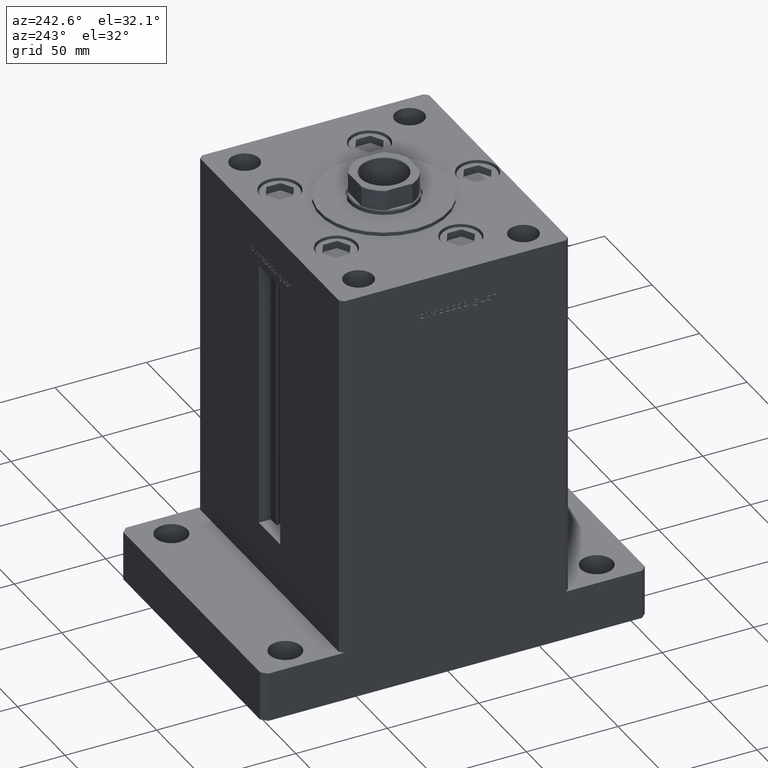
[diagram: clean part render]
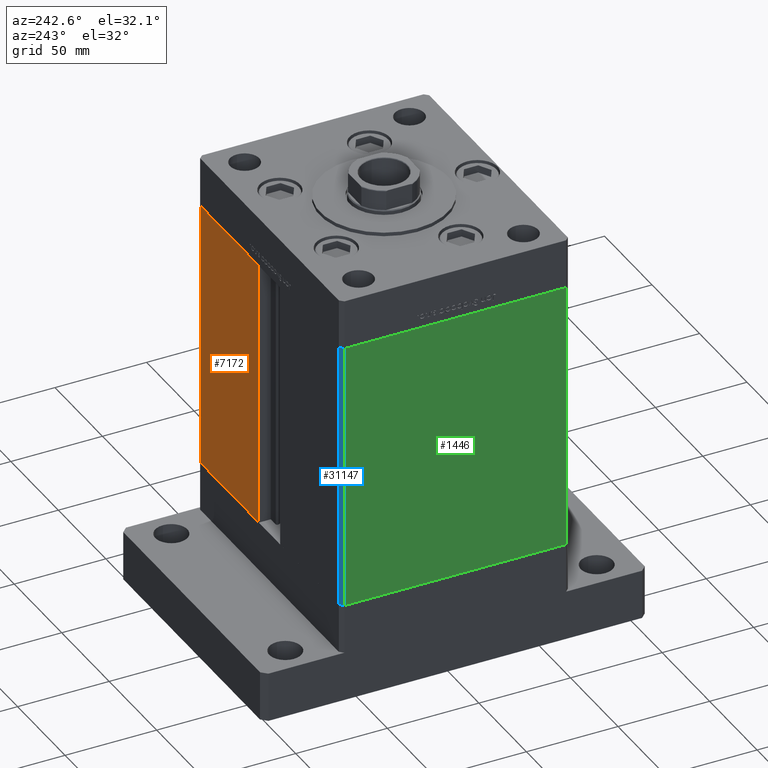
[diagram: same view with three faces highlighted in distinct colors, each labeled with its STEP entity id]
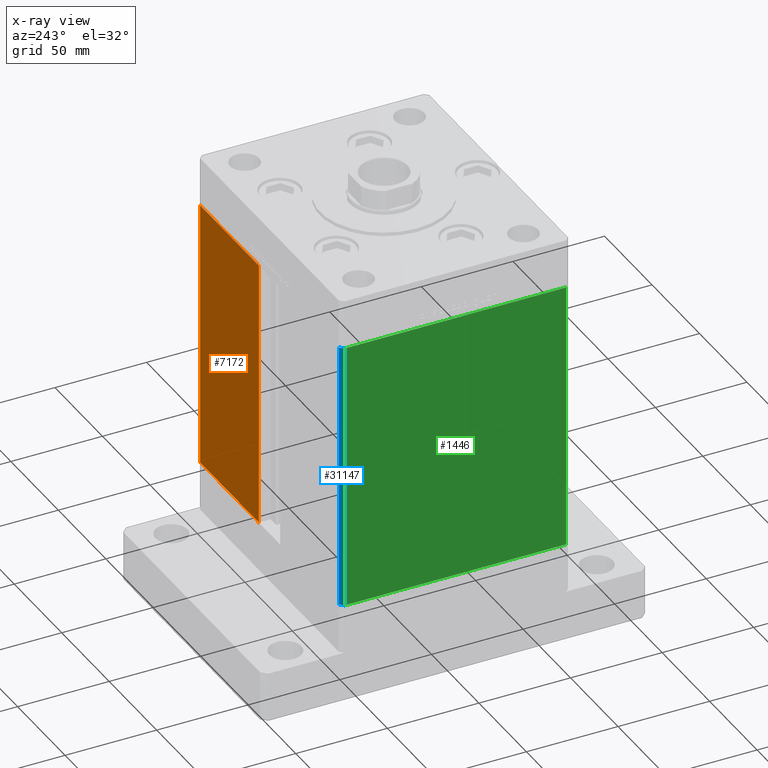
[diagram: x-ray of the same camera — body ghosted, the three highlighted faces saturated]
A machine part, auxiliary view with three faces highlighted in distinct colors.
The next image is the same camera in x-ray (body ghosted, the three faces saturated) — at least one of them is partly hidden behind the body in this view.
Their STEP definitions:

[orange] entity #7172 — the highlighted planar face has unit normal (-0, -1, 0).
#18 = CARTESIAN_POINT ( 'NONE',  ( -11.25000000000000178, 62.49999999999999289, 147.0000000000000000 ) ) ;
#65 = DIRECTION ( 'NONE',  ( 1.000000000000000000, -1.123707514802790025E-16, 0.000000000000000000 ) ) ;
#326 = ORIENTED_EDGE ( 'NONE', *, *, #10324, .T. ) ;
#3640 = VECTOR ( 'NONE', #35101, 1000.000000000000000 ) ;
#7172 = ADVANCED_FACE ( 'NONE', ( #20427 ), #19616, .F. ) ;
#9149 = VECTOR ( 'NONE', #9198, 1000.000000000000000 ) ;
#9198 = DIRECTION ( 'NONE',  ( -0.000000000000000000, -0.000000000000000000, -1.000000000000000000 ) ) ;
#10054 = EDGE_LOOP ( 'NONE', ( #25030, #326, #38115, #32100 ) ) ;
#10324 = EDGE_CURVE ( 'NONE', #29170, #35996, #22620, .T. ) ;
#10507 = DIRECTION ( 'NONE',  ( -1.000000000000000000, 1.123707514802790025E-16, 0.000000000000000000 ) ) ;
#11328 = CARTESIAN_POINT ( 'NONE',  ( 73.00000000000001421, 62.50000000000000000, 0.000000000000000000 ) ) ;
#12677 = VERTEX_POINT ( 'NONE', #11328 ) ;
#13516 = VECTOR ( 'NONE', #40459, 1000.000000000000000 ) ;
#14583 = CARTESIAN_POINT ( 'NONE',  ( -11.25000000000000178, 62.49999999999999289, 0.000000000000000000 ) ) ;
#15650 = AXIS2_PLACEMENT_3D ( 'NONE', #24775, #36710, #65 ) ;
#15813 = EDGE_CURVE ( 'NONE', #12677, #29170, #36024, .T. ) ;
#18499 = VECTOR ( 'NONE', #10507, 1000.000000000000000 ) ;
#19616 = PLANE ( 'NONE',  #15650 ) ;
#20427 = FACE_OUTER_BOUND ( 'NONE', #10054, .T. ) ;
#21832 = CARTESIAN_POINT ( 'NONE',  ( 11.25000000000000178, 62.49999999999999289, 0.000000000000000000 ) ) ;
#22620 = LINE ( 'NONE', #21832, #3640 ) ;
#24775 = CARTESIAN_POINT ( 'NONE',  ( -11.25000000000000178, 62.49999999999999289, 147.0000000000000000 ) ) ;
#25030 = ORIENTED_EDGE ( 'NONE', *, *, #15813, .T. ) ;
#29170 = VERTEX_POINT ( 'NONE', #50791 ) ;
#32100 = ORIENTED_EDGE ( 'NONE', *, *, #46006, .T. ) ;
#32571 = VERTEX_POINT ( 'NONE', #49778 ) ;
#32855 = LINE ( 'NONE', #18, #13516 ) ;
#35101 = DIRECTION ( 'NONE',  ( -0.000000000000000000, -0.000000000000000000, 1.000000000000000000 ) ) ;
#35996 = VERTEX_POINT ( 'NONE', #36615 ) ;
#36024 = LINE ( 'NONE', #14583, #18499 ) ;
#36615 = CARTESIAN_POINT ( 'NONE',  ( 11.24999999999999467, 62.49999999999999289, 147.0000000000000000 ) ) ;
#36710 = DIRECTION ( 'NONE',  ( -1.123707514802790025E-16, -1.000000000000000000, 0.000000000000000000 ) ) ;
#38115 = ORIENTED_EDGE ( 'NONE', *, *, #47996, .T. ) ;
#40459 = DIRECTION ( 'NONE',  ( 1.000000000000000000, 0.000000000000000000, 0.000000000000000000 ) ) ;
#42286 = LINE ( 'NONE', #46360, #9149 ) ;
#46006 = EDGE_CURVE ( 'NONE', #32571, #12677, #42286, .T. ) ;
#46360 = CARTESIAN_POINT ( 'NONE',  ( 73.00000000000001421, 62.50000000000000000, 147.0000000000000000 ) ) ;
#47996 = EDGE_CURVE ( 'NONE', #35996, #32571, #32855, .T. ) ;
#49778 = CARTESIAN_POINT ( 'NONE',  ( 73.00000000000001421, 62.50000000000000000, 147.0000000000000000 ) ) ;
#50791 = CARTESIAN_POINT ( 'NONE',  ( 11.25000000000000178, 62.49999999999999289, 0.000000000000000000 ) ) ;

[blue] entity #31147 — the highlighted planar face has unit normal (0.7071, -0.7071, 0).
#708 = VERTEX_POINT ( 'NONE', #12566 ) ;
#2264 = ORIENTED_EDGE ( 'NONE', *, *, #27144, .T. ) ;
#2310 = LINE ( 'NONE', #35953, #37832 ) ;
#3820 = CARTESIAN_POINT ( 'NONE',  ( -73.00000000000001421, 62.50000000000000000, 147.0000000000000000 ) ) ;
#5365 = CARTESIAN_POINT ( 'NONE',  ( -73.00000000000001421, 62.50000000000000000, 147.0000000000000000 ) ) ;
#6427 = LINE ( 'NONE', #47106, #34302 ) ;
#9323 = AXIS2_PLACEMENT_3D ( 'NONE', #3820, #11962, #49373 ) ;
#10711 = CARTESIAN_POINT ( 'NONE',  ( -75.00000000000001421, 60.50000000000000000, 147.0000000000000000 ) ) ;
#11962 = DIRECTION ( 'NONE',  ( 0.7071067811865475727, -0.7071067811865475727, 0.000000000000000000 ) ) ;
#12566 = CARTESIAN_POINT ( 'NONE',  ( -73.00000000000001421, 62.50000000000000000, 0.000000000000000000 ) ) ;
#14564 = DIRECTION ( 'NONE',  ( -0.7071067811865474617, -0.7071067811865474617, 0.000000000000000000 ) ) ;
#14941 = ORIENTED_EDGE ( 'NONE', *, *, #28910, .T. ) ;
#15594 = DIRECTION ( 'NONE',  ( -0.000000000000000000, -0.000000000000000000, -1.000000000000000000 ) ) ;
#21656 = LINE ( 'NONE', #5365, #23969 ) ;
#22031 = EDGE_LOOP ( 'NONE', ( #14941, #52499, #26422, #2264 ) ) ;
#22486 = VERTEX_POINT ( 'NONE', #32327 ) ;
#23969 = VECTOR ( 'NONE', #51438, 1000.000000000000000 ) ;
#26169 = EDGE_CURVE ( 'NONE', #22486, #31101, #6427, .T. ) ;
#26422 = ORIENTED_EDGE ( 'NONE', *, *, #26169, .F. ) ;
#27144 = EDGE_CURVE ( 'NONE', #22486, #708, #21656, .T. ) ;
#28507 = FACE_OUTER_BOUND ( 'NONE', #22031, .T. ) ;
#28910 = EDGE_CURVE ( 'NONE', #708, #34629, #2310, .T. ) ;
#31101 = VERTEX_POINT ( 'NONE', #40974 ) ;
#31147 = ADVANCED_FACE ( 'NONE', ( #28507 ), #42035, .F. ) ;
#32327 = CARTESIAN_POINT ( 'NONE',  ( -73.00000000000001421, 62.50000000000000000, 147.0000000000000000 ) ) ;
#34302 = VECTOR ( 'NONE', #14564, 1000.000000000000114 ) ;
#34629 = VERTEX_POINT ( 'NONE', #52118 ) ;
#35953 = CARTESIAN_POINT ( 'NONE',  ( -73.00000000000001421, 62.50000000000000000, 0.000000000000000000 ) ) ;
#37832 = VECTOR ( 'NONE', #48672, 1000.000000000000114 ) ;
#40974 = CARTESIAN_POINT ( 'NONE',  ( -75.00000000000001421, 60.50000000000000000, 147.0000000000000000 ) ) ;
#42035 = PLANE ( 'NONE',  #9323 ) ;
#44416 = EDGE_CURVE ( 'NONE', #31101, #34629, #48404, .T. ) ;
#47106 = CARTESIAN_POINT ( 'NONE',  ( -73.00000000000001421, 62.50000000000000000, 147.0000000000000000 ) ) ;
#48404 = LINE ( 'NONE', #10711, #49789 ) ;
#48672 = DIRECTION ( 'NONE',  ( -0.7071067811865474617, -0.7071067811865474617, 0.000000000000000000 ) ) ;
#49373 = DIRECTION ( 'NONE',  ( 0.7071067811865474617, 0.7071067811865474617, 0.000000000000000000 ) ) ;
#49789 = VECTOR ( 'NONE', #15594, 1000.000000000000000 ) ;
#51438 = DIRECTION ( 'NONE',  ( -0.000000000000000000, -0.000000000000000000, -1.000000000000000000 ) ) ;
#52118 = CARTESIAN_POINT ( 'NONE',  ( -75.00000000000001421, 60.50000000000000000, 0.000000000000000000 ) ) ;
#52499 = ORIENTED_EDGE ( 'NONE', *, *, #44416, .F. ) ;

[green] entity #1446 — the highlighted planar face has unit normal (1, 0, 0).
#352 = CARTESIAN_POINT ( 'NONE',  ( -75.00000000000001421, 60.50000000000000000, 147.0000000000000000 ) ) ;
#625 = DIRECTION ( 'NONE',  ( 1.000000000000000000, 2.293849224432141861E-16, -0.000000000000000000 ) ) ;
#984 = VERTEX_POINT ( 'NONE', #45328 ) ;
#1446 = ADVANCED_FACE ( 'NONE', ( #41850 ), #21255, .F. ) ;
#3256 = DIRECTION ( 'NONE',  ( -0.000000000000000000, -0.000000000000000000, -1.000000000000000000 ) ) ;
#5022 = ORIENTED_EDGE ( 'NONE', *, *, #40724, .F. ) ;
#5199 = ORIENTED_EDGE ( 'NONE', *, *, #44416, .T. ) ;
#10711 = CARTESIAN_POINT ( 'NONE',  ( -75.00000000000001421, 60.50000000000000000, 147.0000000000000000 ) ) ;
#13711 = VECTOR ( 'NONE', #50274, 1000.000000000000000 ) ;
#15594 = DIRECTION ( 'NONE',  ( -0.000000000000000000, -0.000000000000000000, -1.000000000000000000 ) ) ;
#16687 = CARTESIAN_POINT ( 'NONE',  ( -75.00000000000001421, 60.50000000000000000, 147.0000000000000000 ) ) ;
#17701 = DIRECTION ( 'NONE',  ( -2.293849224432141861E-16, 1.000000000000000000, 0.000000000000000000 ) ) ;
#18576 = VECTOR ( 'NONE', #3256, 1000.000000000000000 ) ;
#20428 = ORIENTED_EDGE ( 'NONE', *, *, #52915, .T. ) ;
#21255 = PLANE ( 'NONE',  #30365 ) ;
#21300 = LINE ( 'NONE', #16687, #30760 ) ;
#21984 = EDGE_LOOP ( 'NONE', ( #20428, #34593, #5022, #5199 ) ) ;
#22877 = EDGE_CURVE ( 'NONE', #984, #41704, #28475, .T. ) ;
#25089 = LINE ( 'NONE', #38354, #13711 ) ;
#28475 = LINE ( 'NONE', #40415, #18576 ) ;
#30365 = AXIS2_PLACEMENT_3D ( 'NONE', #352, #625, #17701 ) ;
#30760 = VECTOR ( 'NONE', #46234, 1000.000000000000000 ) ;
#31101 = VERTEX_POINT ( 'NONE', #40974 ) ;
#34593 = ORIENTED_EDGE ( 'NONE', *, *, #22877, .F. ) ;
#34629 = VERTEX_POINT ( 'NONE', #52118 ) ;
#38354 = CARTESIAN_POINT ( 'NONE',  ( -75.00000000000001421, 60.50000000000000000, 0.000000000000000000 ) ) ;
#40415 = CARTESIAN_POINT ( 'NONE',  ( -74.99999999999998579, -60.50000000000000000, 147.0000000000000000 ) ) ;
#40724 = EDGE_CURVE ( 'NONE', #31101, #984, #21300, .T. ) ;
#40974 = CARTESIAN_POINT ( 'NONE',  ( -75.00000000000001421, 60.50000000000000000, 147.0000000000000000 ) ) ;
#41704 = VERTEX_POINT ( 'NONE', #51481 ) ;
#41850 = FACE_OUTER_BOUND ( 'NONE', #21984, .T. ) ;
#44416 = EDGE_CURVE ( 'NONE', #31101, #34629, #48404, .T. ) ;
#45328 = CARTESIAN_POINT ( 'NONE',  ( -74.99999999999998579, -60.50000000000000000, 147.0000000000000000 ) ) ;
#46234 = DIRECTION ( 'NONE',  ( 2.293849224432141861E-16, -1.000000000000000000, 0.000000000000000000 ) ) ;
#48404 = LINE ( 'NONE', #10711, #49789 ) ;
#49789 = VECTOR ( 'NONE', #15594, 1000.000000000000000 ) ;
#50274 = DIRECTION ( 'NONE',  ( 2.293849224432141861E-16, -1.000000000000000000, 0.000000000000000000 ) ) ;
#51481 = CARTESIAN_POINT ( 'NONE',  ( -74.99999999999998579, -60.50000000000000000, 0.000000000000000000 ) ) ;
#52118 = CARTESIAN_POINT ( 'NONE',  ( -75.00000000000001421, 60.50000000000000000, 0.000000000000000000 ) ) ;
#52915 = EDGE_CURVE ( 'NONE', #34629, #41704, #25089, .T. ) ;